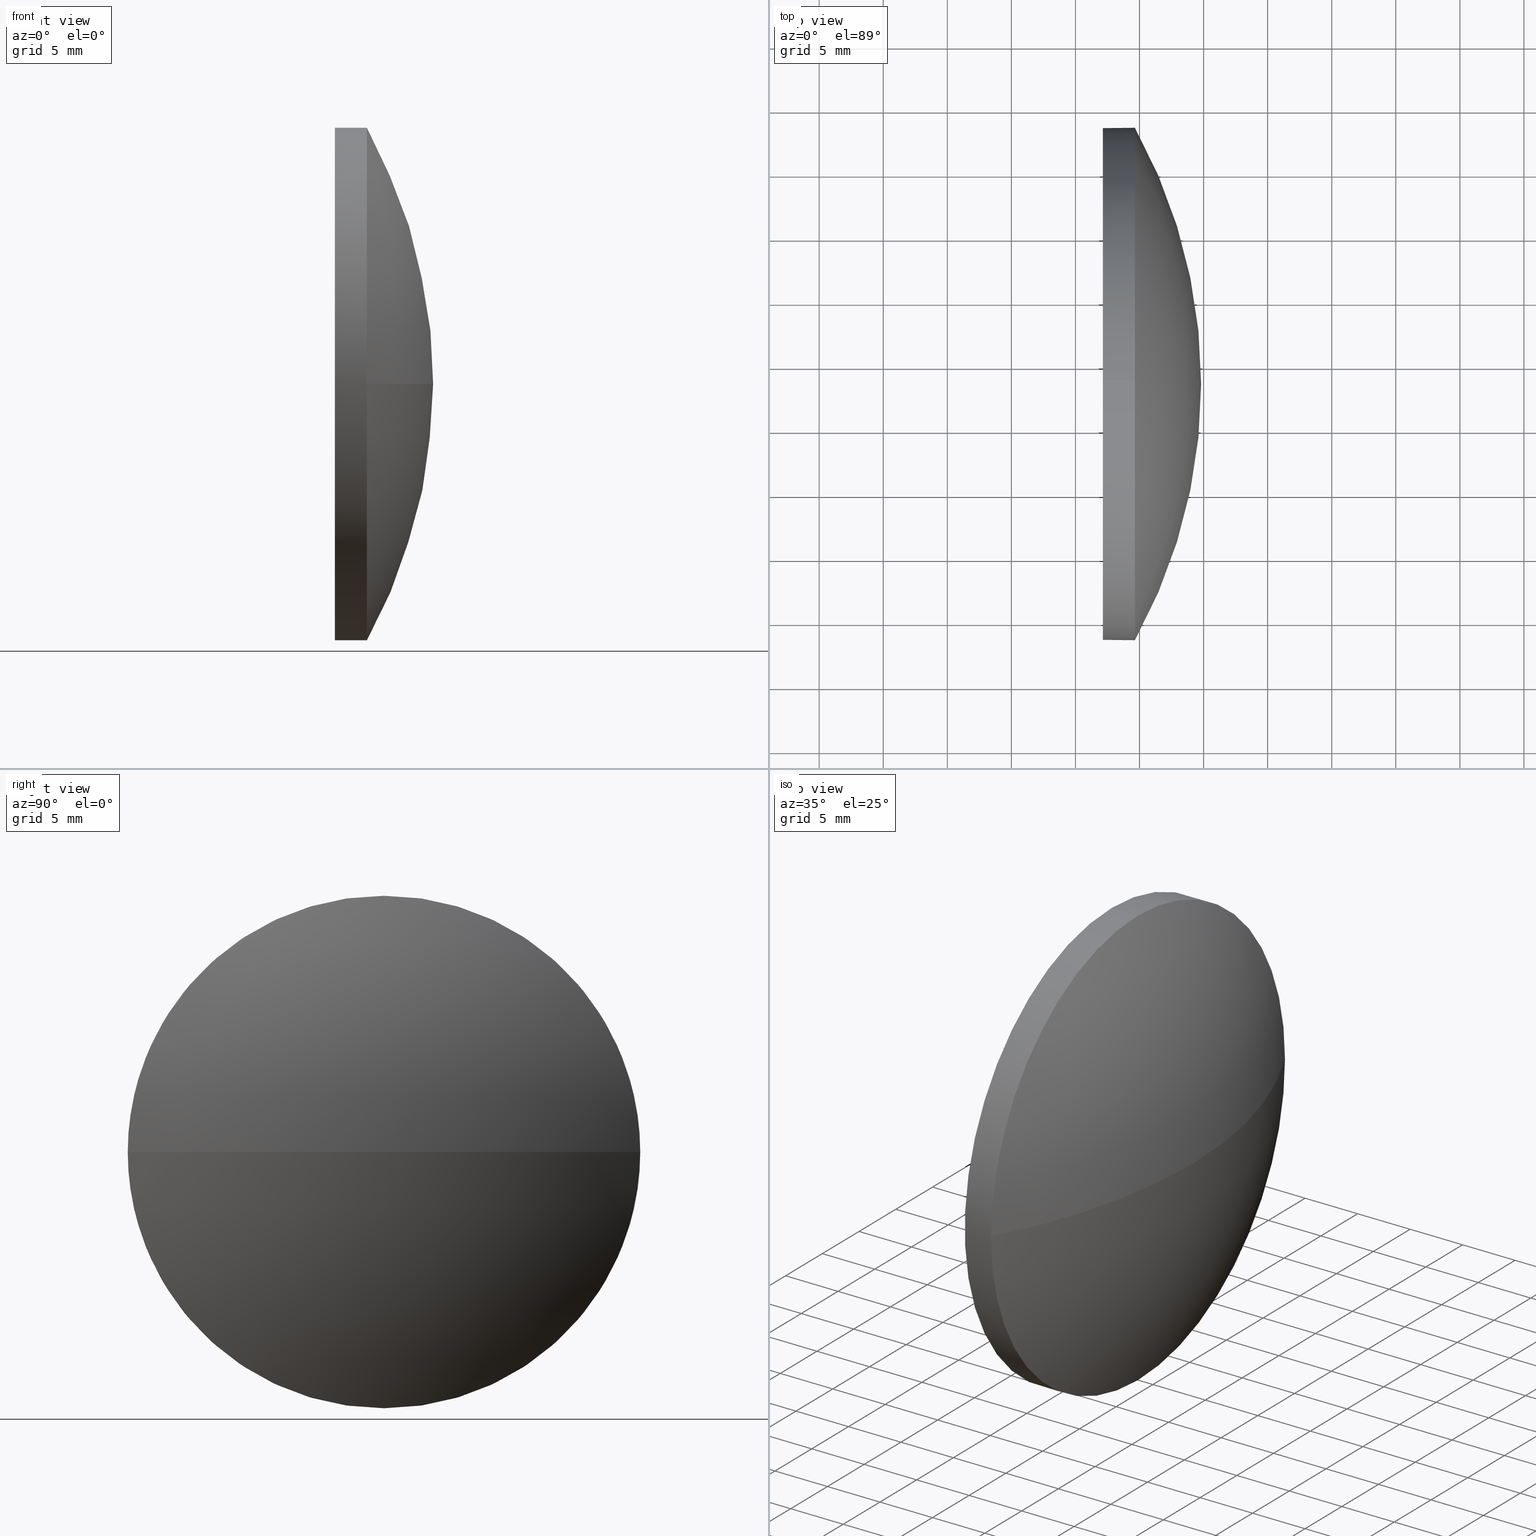
[diagram: canonical four-view strip — front | top / right | iso, engineering-drawing reading convention]
A machine part, canonical four-view strip (front | top / right | iso — engineering-drawing reading convention). The complete STEP part file that produces these views, byte-faithful:
ISO-10303-21;
HEADER;
FILE_DESCRIPTION (( 'STEP AP214' ),
    '1' );
FILE_NAME ('100057.STEP',
    '2019-04-30T02:48:13',
    ( '' ),
    ( '' ),
    'SwSTEP 2.0',
    'SolidWorks 2016',
    '' );
FILE_SCHEMA (( 'AUTOMOTIVE_DESIGN' ));
ENDSEC;

DATA;
#1 = CARTESIAN_POINT ( 'NONE',  ( 463.5388636371064900, 143.4929616837899600, 0.0000000000000000000 ) ) ;
#2 = PRESENTATION_LAYER_ASSIGNMENT (  '', '', ( #25 ) ) ;
#3 = COLOUR_RGB ( '',1.000000000000000000, 1.000000000000000000, 1.000000000000000000 ) ;
#4 = PRODUCT_DEFINITION_SHAPE ( 'NONE', 'NONE',  #73 ) ;
#5 = DIRECTION ( 'NONE',  ( -1.000000000000000000, -0.0000000000000000000, -0.0000000000000000000 ) ) ;
#6 = DIRECTION ( 'NONE',  ( -1.000000000000000000, -0.0000000000000000000, -0.0000000000000000000 ) ) ;
#7 = EDGE_CURVE ( 'NONE', #62, #123, #168, .T. ) ;
#8 = CARTESIAN_POINT ( 'NONE',  ( 499.6385831728898700, 143.4929616837899900, -19.99999999999998900 ) ) ;
#9 = DIRECTION ( 'NONE',  ( 1.000000000000000000, 0.0000000000000000000, 0.0000000000000000000 ) ) ;
#10 = CARTESIAN_POINT ( 'NONE',  ( 487.6320858531166800, 143.4929616837899900, 19.99999999999998900 ) ) ;
#11 = DIRECTION ( 'NONE',  ( -1.000000000000000000, -0.0000000000000000000, -0.0000000000000000000 ) ) ;
#12 = AXIS2_PLACEMENT_3D ( 'NONE', #104, #11, #179 ) ;
#13 = AXIS2_PLACEMENT_3D ( 'NONE', #66, #176, #124 ) ;
#14 = VERTEX_POINT ( 'NONE', #122 ) ;
#15 = AXIS2_PLACEMENT_3D ( 'NONE', #128, #9, #41 ) ;
#16 = VECTOR ( 'NONE', #23, 1000.000000000000000 ) ;
#17 = FILL_AREA_STYLE_COLOUR ( '', #3 ) ;
#18 = CARTESIAN_POINT ( 'NONE',  ( 463.5388636371064900, 143.4929616837899600, 0.0000000000000000000 ) ) ;
#19 = DIRECTION ( 'NONE',  ( 0.0000000000000000000, 0.0000000000000000000, 1.000000000000000000 ) ) ;
#20 = PRODUCT_DEFINITION_CONTEXT ( 'detailed design', #166, 'design' ) ;
#21 = ORIENTED_EDGE ( 'NONE', *, *, #126, .F. ) ;
#22 =( NAMED_UNIT ( * ) PLANE_ANGLE_UNIT ( ) SI_UNIT ( $, .RADIAN. ) );
#23 = DIRECTION ( 'NONE',  ( -1.000000000000000000, -0.0000000000000000000, -0.0000000000000000000 ) ) ;
#24 = DIRECTION ( 'NONE',  ( -1.000000000000000000, -0.0000000000000000000, -0.0000000000000000000 ) ) ;
#25 = STYLED_ITEM ( 'NONE', ( #127 ), #30 ) ;
#26 = EDGE_CURVE ( 'NONE', #181, #37, #99, .T. ) ;
#27 =( GEOMETRIC_REPRESENTATION_CONTEXT ( 3 ) GLOBAL_UNCERTAINTY_ASSIGNED_CONTEXT ( ( #39 ) ) GLOBAL_UNIT_ASSIGNED_CONTEXT ( ( #178, #22, #158 ) ) REPRESENTATION_CONTEXT ( 'NONE', 'WORKASPACE' ) );
#28 = VERTEX_POINT ( 'NONE', #68 ) ;
#29 = EDGE_CURVE ( 'NONE', #62, #37, #96, .T. ) ;
#30 = ADVANCED_BREP_SHAPE_REPRESENTATION ( '100057', ( #77, #155 ), #27 ) ;
#31 = CARTESIAN_POINT ( 'NONE',  ( 487.6320858531166800, 143.4929616837899900, 0.0000000000000000000 ) ) ;
#32 = APPLICATION_CONTEXT ( 'automotive_design' ) ;
#33 = AXIS2_PLACEMENT_3D ( 'NONE', #106, #92, #19 ) ;
#34 = PRODUCT_CONTEXT ( 'NONE', #32, 'mechanical' ) ;
#35 = CARTESIAN_POINT ( 'NONE',  ( 499.6385831728898700, 163.4929616837899900, 0.0000000000000000000 ) ) ;
#36 = EDGE_CURVE ( 'NONE', #28, #14, #51, .T. ) ;
#37 = VERTEX_POINT ( 'NONE', #49 ) ;
#38 = ORIENTED_EDGE ( 'NONE', *, *, #100, .F. ) ;
#39 = UNCERTAINTY_MEASURE_WITH_UNIT (LENGTH_MEASURE( 1.000000000000000100E-005 ), #178, 'distance_accuracy_value', 'NONE');
#40 = DIRECTION ( 'NONE',  ( 0.0000000000000000000, 0.0000000000000000000, 1.000000000000000000 ) ) ;
#41 = DIRECTION ( 'NONE',  ( 0.0000000000000000000, 0.0000000000000000000, -1.000000000000000000 ) ) ;
#42 = DIRECTION ( 'NONE',  ( -0.0000000000000000000, 0.0000000000000000000, -1.000000000000000000 ) ) ;
#43 = FILL_AREA_STYLE_COLOUR ( '', #116 ) ;
#44 = SURFACE_SIDE_STYLE ('',( #186 ) ) ;
#45 = ADVANCED_FACE ( 'NONE', ( #48 ), #174, .T. ) ;
#46 = ORIENTED_EDGE ( 'NONE', *, *, #7, .T. ) ;
#47 = ORIENTED_EDGE ( 'NONE', *, *, #29, .T. ) ;
#48 = FACE_OUTER_BOUND ( 'NONE', #75, .T. ) ;
#49 = CARTESIAN_POINT ( 'NONE',  ( 499.6385831728898700, 123.4929616837899900, -2.449293598294705700E-015 ) ) ;
#50 = ORIENTED_EDGE ( 'NONE', *, *, #148, .F. ) ;
#51 = CIRCLE ( 'NONE', #101, 19.99999999999998900 ) ;
#52 = DIRECTION ( 'NONE',  ( 1.000000000000000000, 0.0000000000000000000, 0.0000000000000000000 ) ) ;
#53 = EDGE_LOOP ( 'NONE', ( #95, #113 ) ) ;
#54 = DIRECTION ( 'NONE',  ( -0.0000000000000000000, 0.0000000000000000000, -1.000000000000000000 ) ) ;
#55 = FILL_AREA_STYLE ('',( #43 ) ) ;
#56 = CARTESIAN_POINT ( 'NONE',  ( 487.6320858531166800, 143.4929616837899900, -19.99999999999998900 ) ) ;
#57 = CIRCLE ( 'NONE', #165, 19.99999999999998900 ) ;
#58 =( NAMED_UNIT ( * ) PLANE_ANGLE_UNIT ( ) SI_UNIT ( $, .RADIAN. ) );
#59 = DIRECTION ( 'NONE',  ( 0.0000000000000000000, 0.0000000000000000000, 1.000000000000000000 ) ) ;
#60 = ORIENTED_EDGE ( 'NONE', *, *, #150, .T. ) ;
#61 = ADVANCED_FACE ( 'NONE', ( #164 ), #152, .T. ) ;
#62 = VERTEX_POINT ( 'NONE', #141 ) ;
#63 = EDGE_LOOP ( 'NONE', ( #112, #47, #117, #50 ) ) ;
#64 = MECHANICAL_DESIGN_GEOMETRIC_PRESENTATION_REPRESENTATION (  '', ( #140 ), #132 ) ;
#65 = AXIS2_PLACEMENT_3D ( 'NONE', #157, #143, #59 ) ;
#66 = CARTESIAN_POINT ( 'NONE',  ( 463.5388636371064900, 143.4929616837899600, 0.0000000000000000000 ) ) ;
#67 = ADVANCED_FACE ( 'NONE', ( #118 ), #80, .F. ) ;
#68 = CARTESIAN_POINT ( 'NONE',  ( 497.1385831728898700, 143.4929616837899900, 19.99999999999998900 ) ) ;
#69 = APPLICATION_PROTOCOL_DEFINITION ( 'draft international standard', 'automotive_design', 1998, #32 ) ;
#70 = FILL_AREA_STYLE ('',( #17 ) ) ;
#71 = CARTESIAN_POINT ( 'NONE',  ( 463.5388636371064900, 143.4929616837899600, 0.0000000000000000000 ) ) ;
#72 =( GEOMETRIC_REPRESENTATION_CONTEXT ( 3 ) GLOBAL_UNCERTAINTY_ASSIGNED_CONTEXT ( ( #184 ) ) GLOBAL_UNIT_ASSIGNED_CONTEXT ( ( #147, #58, #161 ) ) REPRESENTATION_CONTEXT ( 'NONE', 'WORKASPACE' ) );
#73 = PRODUCT_DEFINITION ( 'δ֪', '', #76, #20 ) ;
#74 = APPLICATION_PROTOCOL_DEFINITION ( 'draft international standard', 'automotive_design', 1998, #166 ) ;
#75 = EDGE_LOOP ( 'NONE', ( #175, #46, #86, #21 ) ) ;
#76 = PRODUCT_DEFINITION_FORMATION_WITH_SPECIFIED_SOURCE ( '�κ�', '', #131, .NOT_KNOWN. ) ;
#77 = MANIFOLD_SOLID_BREP ( '��ת1', #83 ) ;
#78 = PRODUCT_RELATED_PRODUCT_CATEGORY ( 'part', '', ( #131 ) ) ;
#79 = CARTESIAN_POINT ( 'NONE',  ( 499.6385831728898700, 143.4929616837899900, 0.0000000000000000000 ) ) ;
#80 = PLANE ( 'NONE',  #15 ) ;
#81 = AXIS2_PLACEMENT_3D ( 'NONE', #156, #6, #102 ) ;
#82 = FACE_OUTER_BOUND ( 'NONE', #84, .T. ) ;
#83 = CLOSED_SHELL ( 'NONE', ( #183, #107, #45, #61, #67 ) ) ;
#84 = EDGE_LOOP ( 'NONE', ( #173, #185, #167, #98, #60 ) ) ;
#85 = LINE ( 'NONE', #10, #16 ) ;
#86 = ORIENTED_EDGE ( 'NONE', *, *, #150, .F. ) ;
#87 = ORIENTED_EDGE ( 'NONE', *, *, #26, .T. ) ;
#88 = PRESENTATION_LAYER_ASSIGNMENT (  '', '', ( #140 ) ) ;
#89 = EDGE_LOOP ( 'NONE', ( #38, #87, #138, #151, #114 ) ) ;
#90 = DIRECTION ( 'NONE',  ( 0.0000000000000000000, 0.0000000000000000000, 1.000000000000000000 ) ) ;
#91 = DIRECTION ( 'NONE',  ( -1.000000000000000000, -0.0000000000000000000, -0.0000000000000000000 ) ) ;
#92 = DIRECTION ( 'NONE',  ( -1.000000000000000000, -0.0000000000000000000, -0.0000000000000000000 ) ) ;
#93 = SURFACE_STYLE_USAGE ( .BOTH. , #44 ) ;
#94 =( NAMED_UNIT ( * ) PLANE_ANGLE_UNIT ( ) SI_UNIT ( $, .RADIAN. ) );
#95 = ORIENTED_EDGE ( 'NONE', *, *, #36, .T. ) ;
#96 = CIRCLE ( 'NONE', #119, 41.26971953578340200 ) ;
#97 = CARTESIAN_POINT ( 'NONE',  ( 499.6385831728898700, 143.4929616837899900, 0.0000000000000000000 ) ) ;
#98 = ORIENTED_EDGE ( 'NONE', *, *, #171, .F. ) ;
#99 = CIRCLE ( 'NONE', #81, 19.99999999999998900 ) ;
#100 = EDGE_CURVE ( 'NONE', #181, #14, #120, .T. ) ;
#101 = AXIS2_PLACEMENT_3D ( 'NONE', #125, #91, #90 ) ;
#102 = DIRECTION ( 'NONE',  ( 0.0000000000000000000, 0.0000000000000000000, 1.000000000000000000 ) ) ;
#103 = DIRECTION ( 'NONE',  ( 0.0000000000000000000, 1.224646799147353200E-016, -1.000000000000000000 ) ) ;
#104 = CARTESIAN_POINT ( 'NONE',  ( 499.6385831728898700, 143.4929616837899900, 0.0000000000000000000 ) ) ;
#105 = SURFACE_SIDE_STYLE ('',( #115 ) ) ;
#106 = CARTESIAN_POINT ( 'NONE',  ( 497.1385831728898700, 143.4929616837899900, 0.0000000000000000000 ) ) ;
#107 = ADVANCED_FACE ( 'NONE', ( #172 ), #121, .T. ) ;
#108 = EDGE_CURVE ( 'NONE', #14, #28, #129, .T. ) ;
#109 =( NAMED_UNIT ( * ) SI_UNIT ( $, .STERADIAN. ) SOLID_ANGLE_UNIT ( ) );
#110 = CARTESIAN_POINT ( 'NONE',  ( 0.0000000000000000000, 0.0000000000000000000, 0.0000000000000000000 ) ) ;
#111 = CYLINDRICAL_SURFACE ( 'NONE', #65, 19.99999999999998900 ) ;
#112 = ORIENTED_EDGE ( 'NONE', *, *, #7, .F. ) ;
#113 = ORIENTED_EDGE ( 'NONE', *, *, #108, .T. ) ;
#114 = ORIENTED_EDGE ( 'NONE', *, *, #108, .F. ) ;
#115 = SURFACE_STYLE_FILL_AREA ( #70 ) ;
#116 = COLOUR_RGB ( '',1.000000000000000000, 1.000000000000000000, 1.000000000000000000 ) ;
#117 = ORIENTED_EDGE ( 'NONE', *, *, #26, .F. ) ;
#118 = FACE_OUTER_BOUND ( 'NONE', #53, .T. ) ;
#119 = AXIS2_PLACEMENT_3D ( 'NONE', #18, #103, #139 ) ;
#120 = LINE ( 'NONE', #56, #135 ) ;
#121 = SPHERICAL_SURFACE ( 'NONE', #163, 41.26971953578340200 ) ;
#122 = CARTESIAN_POINT ( 'NONE',  ( 497.1385831728898700, 143.4929616837899900, -19.99999999999998900 ) ) ;
#123 = VERTEX_POINT ( 'NONE', #35 ) ;
#124 = DIRECTION ( 'NONE',  ( 1.000000000000000000, 0.0000000000000000000, 0.0000000000000000000 ) ) ;
#125 = CARTESIAN_POINT ( 'NONE',  ( 497.1385831728898700, 143.4929616837899900, 0.0000000000000000000 ) ) ;
#126 = EDGE_CURVE ( 'NONE', #37, #136, #170, .T. ) ;
#127 = PRESENTATION_STYLE_ASSIGNMENT (( #93 ) ) ;
#128 = CARTESIAN_POINT ( 'NONE',  ( 497.1385831728898700, 143.4929616837899900, 0.0000000000000000000 ) ) ;
#129 = CIRCLE ( 'NONE', #33, 19.99999999999998900 ) ;
#130 = DIRECTION ( 'NONE',  ( 0.0000000000000000000, 0.0000000000000000000, 1.000000000000000000 ) ) ;
#131 = PRODUCT ( '100057', '100057', '', ( #34 ) ) ;
#132 =( GEOMETRIC_REPRESENTATION_CONTEXT ( 3 ) GLOBAL_UNCERTAINTY_ASSIGNED_CONTEXT ( ( #169 ) ) GLOBAL_UNIT_ASSIGNED_CONTEXT ( ( #144, #94, #109 ) ) REPRESENTATION_CONTEXT ( 'NONE', 'WORKASPACE' ) );
#133 = AXIS2_PLACEMENT_3D ( 'NONE', #79, #24, #160 ) ;
#134 = MECHANICAL_DESIGN_GEOMETRIC_PRESENTATION_REPRESENTATION (  '', ( #25 ), #72 ) ;
#135 = VECTOR ( 'NONE', #182, 1000.000000000000000 ) ;
#136 = VERTEX_POINT ( 'NONE', #180 ) ;
#137 = PRESENTATION_STYLE_ASSIGNMENT (( #159 ) ) ;
#138 = ORIENTED_EDGE ( 'NONE', *, *, #126, .T. ) ;
#139 = DIRECTION ( 'NONE',  ( 0.0000000000000000000, 1.000000000000000000, 1.224646799147353200E-016 ) ) ;
#140 = STYLED_ITEM ( 'NONE', ( #137 ), #77 ) ;
#141 = CARTESIAN_POINT ( 'NONE',  ( 504.8085831728898800, 143.4929616837899600, 0.0000000000000000000 ) ) ;
#142 = DIRECTION ( 'NONE',  ( -1.000000000000000000, -0.0000000000000000000, -0.0000000000000000000 ) ) ;
#143 = DIRECTION ( 'NONE',  ( -1.000000000000000000, -0.0000000000000000000, -0.0000000000000000000 ) ) ;
#144 =( LENGTH_UNIT ( ) NAMED_UNIT ( * ) SI_UNIT ( .MILLI., .METRE. ) );
#145 = DIRECTION ( 'NONE',  ( 0.0000000000000000000, 1.000000000000000000, 0.0000000000000000000 ) ) ;
#146 = AXIS2_PLACEMENT_3D ( 'NONE', #1, #54, #177 ) ;
#147 =( LENGTH_UNIT ( ) NAMED_UNIT ( * ) SI_UNIT ( .MILLI., .METRE. ) );
#148 = EDGE_CURVE ( 'NONE', #123, #181, #57, .T. ) ;
#149 = SHAPE_DEFINITION_REPRESENTATION ( #4, #30 ) ;
#150 = EDGE_CURVE ( 'NONE', #136, #123, #154, .T. ) ;
#151 = ORIENTED_EDGE ( 'NONE', *, *, #171, .T. ) ;
#152 = CYLINDRICAL_SURFACE ( 'NONE', #153, 19.99999999999998900 ) ;
#153 = AXIS2_PLACEMENT_3D ( 'NONE', #31, #5, #40 ) ;
#154 = CIRCLE ( 'NONE', #12, 19.99999999999998900 ) ;
#155 = AXIS2_PLACEMENT_3D ( 'NONE', #110, #162, #52 ) ;
#156 = CARTESIAN_POINT ( 'NONE',  ( 499.6385831728898700, 143.4929616837899900, 0.0000000000000000000 ) ) ;
#157 = CARTESIAN_POINT ( 'NONE',  ( 487.6320858531166800, 143.4929616837899900, 0.0000000000000000000 ) ) ;
#158 =( NAMED_UNIT ( * ) SI_UNIT ( $, .STERADIAN. ) SOLID_ANGLE_UNIT ( ) );
#159 = SURFACE_STYLE_USAGE ( .BOTH. , #105 ) ;
#160 = DIRECTION ( 'NONE',  ( 0.0000000000000000000, 0.0000000000000000000, 1.000000000000000000 ) ) ;
#161 =( NAMED_UNIT ( * ) SI_UNIT ( $, .STERADIAN. ) SOLID_ANGLE_UNIT ( ) );
#162 = DIRECTION ( 'NONE',  ( 0.0000000000000000000, 0.0000000000000000000, 1.000000000000000000 ) ) ;
#163 = AXIS2_PLACEMENT_3D ( 'NONE', #71, #42, #145 ) ;
#164 = FACE_OUTER_BOUND ( 'NONE', #89, .T. ) ;
#165 = AXIS2_PLACEMENT_3D ( 'NONE', #97, #142, #130 ) ;
#166 = APPLICATION_CONTEXT ( 'automotive_design' ) ;
#167 = ORIENTED_EDGE ( 'NONE', *, *, #36, .F. ) ;
#168 = CIRCLE ( 'NONE', #13, 41.26971953578340200 ) ;
#169 = UNCERTAINTY_MEASURE_WITH_UNIT (LENGTH_MEASURE( 1.000000000000000100E-005 ), #144, 'distance_accuracy_value', 'NONE');
#170 = CIRCLE ( 'NONE', #133, 19.99999999999998900 ) ;
#171 = EDGE_CURVE ( 'NONE', #136, #28, #85, .T. ) ;
#172 = FACE_OUTER_BOUND ( 'NONE', #63, .T. ) ;
#173 = ORIENTED_EDGE ( 'NONE', *, *, #148, .T. ) ;
#174 = SPHERICAL_SURFACE ( 'NONE', #146, 41.26971953578340200 ) ;
#175 = ORIENTED_EDGE ( 'NONE', *, *, #29, .F. ) ;
#176 = DIRECTION ( 'NONE',  ( -0.0000000000000000000, 0.0000000000000000000, 1.000000000000000000 ) ) ;
#177 = DIRECTION ( 'NONE',  ( 0.0000000000000000000, 1.000000000000000000, 0.0000000000000000000 ) ) ;
#178 =( LENGTH_UNIT ( ) NAMED_UNIT ( * ) SI_UNIT ( .MILLI., .METRE. ) );
#179 = DIRECTION ( 'NONE',  ( 0.0000000000000000000, 0.0000000000000000000, 1.000000000000000000 ) ) ;
#180 = CARTESIAN_POINT ( 'NONE',  ( 499.6385831728898700, 143.4929616837899900, 19.99999999999998900 ) ) ;
#181 = VERTEX_POINT ( 'NONE', #8 ) ;
#182 = DIRECTION ( 'NONE',  ( -1.000000000000000000, -0.0000000000000000000, -0.0000000000000000000 ) ) ;
#183 = ADVANCED_FACE ( 'NONE', ( #82 ), #111, .T. ) ;
#184 = UNCERTAINTY_MEASURE_WITH_UNIT (LENGTH_MEASURE( 1.000000000000000100E-005 ), #147, 'distance_accuracy_value', 'NONE');
#185 = ORIENTED_EDGE ( 'NONE', *, *, #100, .T. ) ;
#186 = SURFACE_STYLE_FILL_AREA ( #55 ) ;
ENDSEC;
END-ISO-10303-21;
